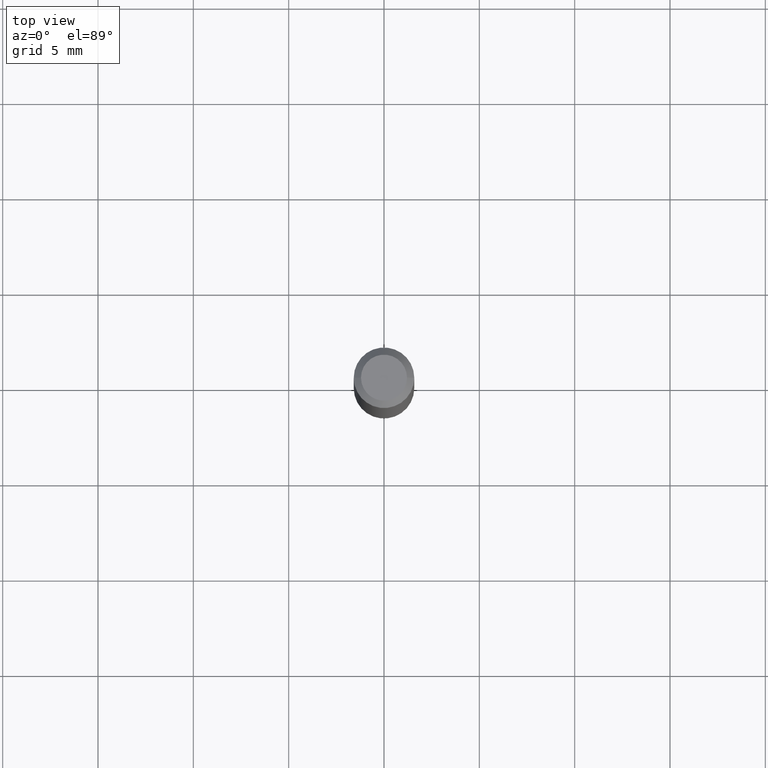
[diagram: clean part render]
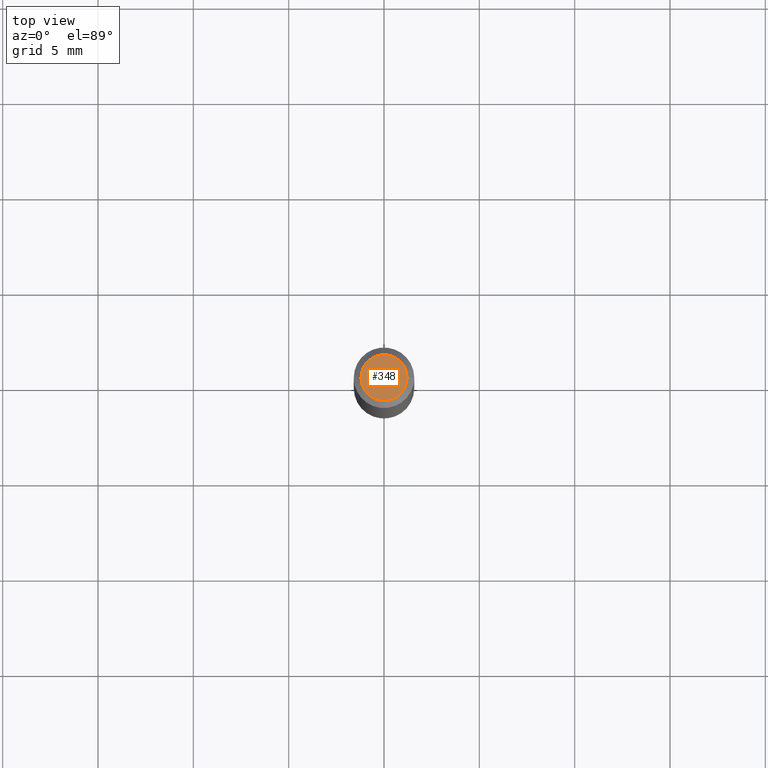
[diagram: same view with one face highlighted and labeled with its STEP entity id]
A machine part, top view. The second image highlights one B-rep face of the part: STEP entity #348.
In plain terms, the highlighted planar face has unit normal (0, -0, -1).
Its self-contained STEP definition (entity closure, byte-faithful):
#19 = VERTEX_POINT ( 'NONE', #178 ) ;
#25 = CIRCLE ( 'NONE', #139, 0.04749999999999999362 ) ;
#29 = DIRECTION ( 'NONE',  ( 1.000000000000000000, -6.982962677686267499E-15, 4.852736867747366768E-29 ) ) ;
#64 = DIRECTION ( 'NONE',  ( -2.445468806185136597E-29, 3.491481338843145583E-15, 1.000000000000000000 ) ) ;
#65 = DIRECTION ( 'NONE',  ( 2.438088387897960049E-29, -3.491481338843145188E-15, -1.000000000000000000 ) ) ;
#113 = DIRECTION ( 'NONE',  ( 1.000000000000000000, -6.982962677686267499E-15, 4.852736867747366768E-29 ) ) ;
#126 = FACE_OUTER_BOUND ( 'NONE', #197, .T. ) ;
#139 = AXIS2_PLACEMENT_3D ( 'NONE', #145, #433, #113 ) ;
#145 = CARTESIAN_POINT ( 'NONE',  ( -1.505681066337554235E-44, 2.149713515899588158E-30, 6.157024217726067260E-16 ) ) ;
#178 = CARTESIAN_POINT ( 'NONE',  ( -0.04749999999999999362, 3.578768372314221353E-16, 6.157024217726043594E-16 ) ) ;
#189 = EDGE_CURVE ( 'NONE', #19, #242, #25, .T. ) ;
#197 = EDGE_LOOP ( 'NONE', ( #379, #216 ) ) ;
#209 = PLANE ( 'NONE',  #407 ) ;
#216 = ORIENTED_EDGE ( 'NONE', *, *, #358, .T. ) ;
#231 = CARTESIAN_POINT ( 'NONE',  ( 0.04749999999999999362, -4.035134999187568269E-16, 6.157024217726092898E-16 ) ) ;
#242 = VERTEX_POINT ( 'NONE', #231 ) ;
#248 = CARTESIAN_POINT ( 'NONE',  ( 3.316907271900976096E-16, 0.04749999999999999362, 1.420058472912539912E-16 ) ) ;
#249 = CARTESIAN_POINT ( 'NONE',  ( -1.505681066337554235E-44, 2.149713515899588158E-30, 6.157024217726067260E-16 ) ) ;
#287 = CIRCLE ( 'NONE', #390, 0.04749999999999999362 ) ;
#344 = DIRECTION ( 'NONE',  ( -1.000000000000000000, 6.982962677686265922E-15, -4.876176775795935793E-29 ) ) ;
#348 = ADVANCED_FACE ( 'NONE', ( #126 ), #209, .F. ) ;
#358 = EDGE_CURVE ( 'NONE', #242, #19, #287, .T. ) ;
#379 = ORIENTED_EDGE ( 'NONE', *, *, #189, .T. ) ;
#390 = AXIS2_PLACEMENT_3D ( 'NONE', #249, #64, #29 ) ;
#407 = AXIS2_PLACEMENT_3D ( 'NONE', #248, #65, #344 ) ;
#433 = DIRECTION ( 'NONE',  ( -2.445468806185136597E-29, 3.491481338843145583E-15, 1.000000000000000000 ) ) ;